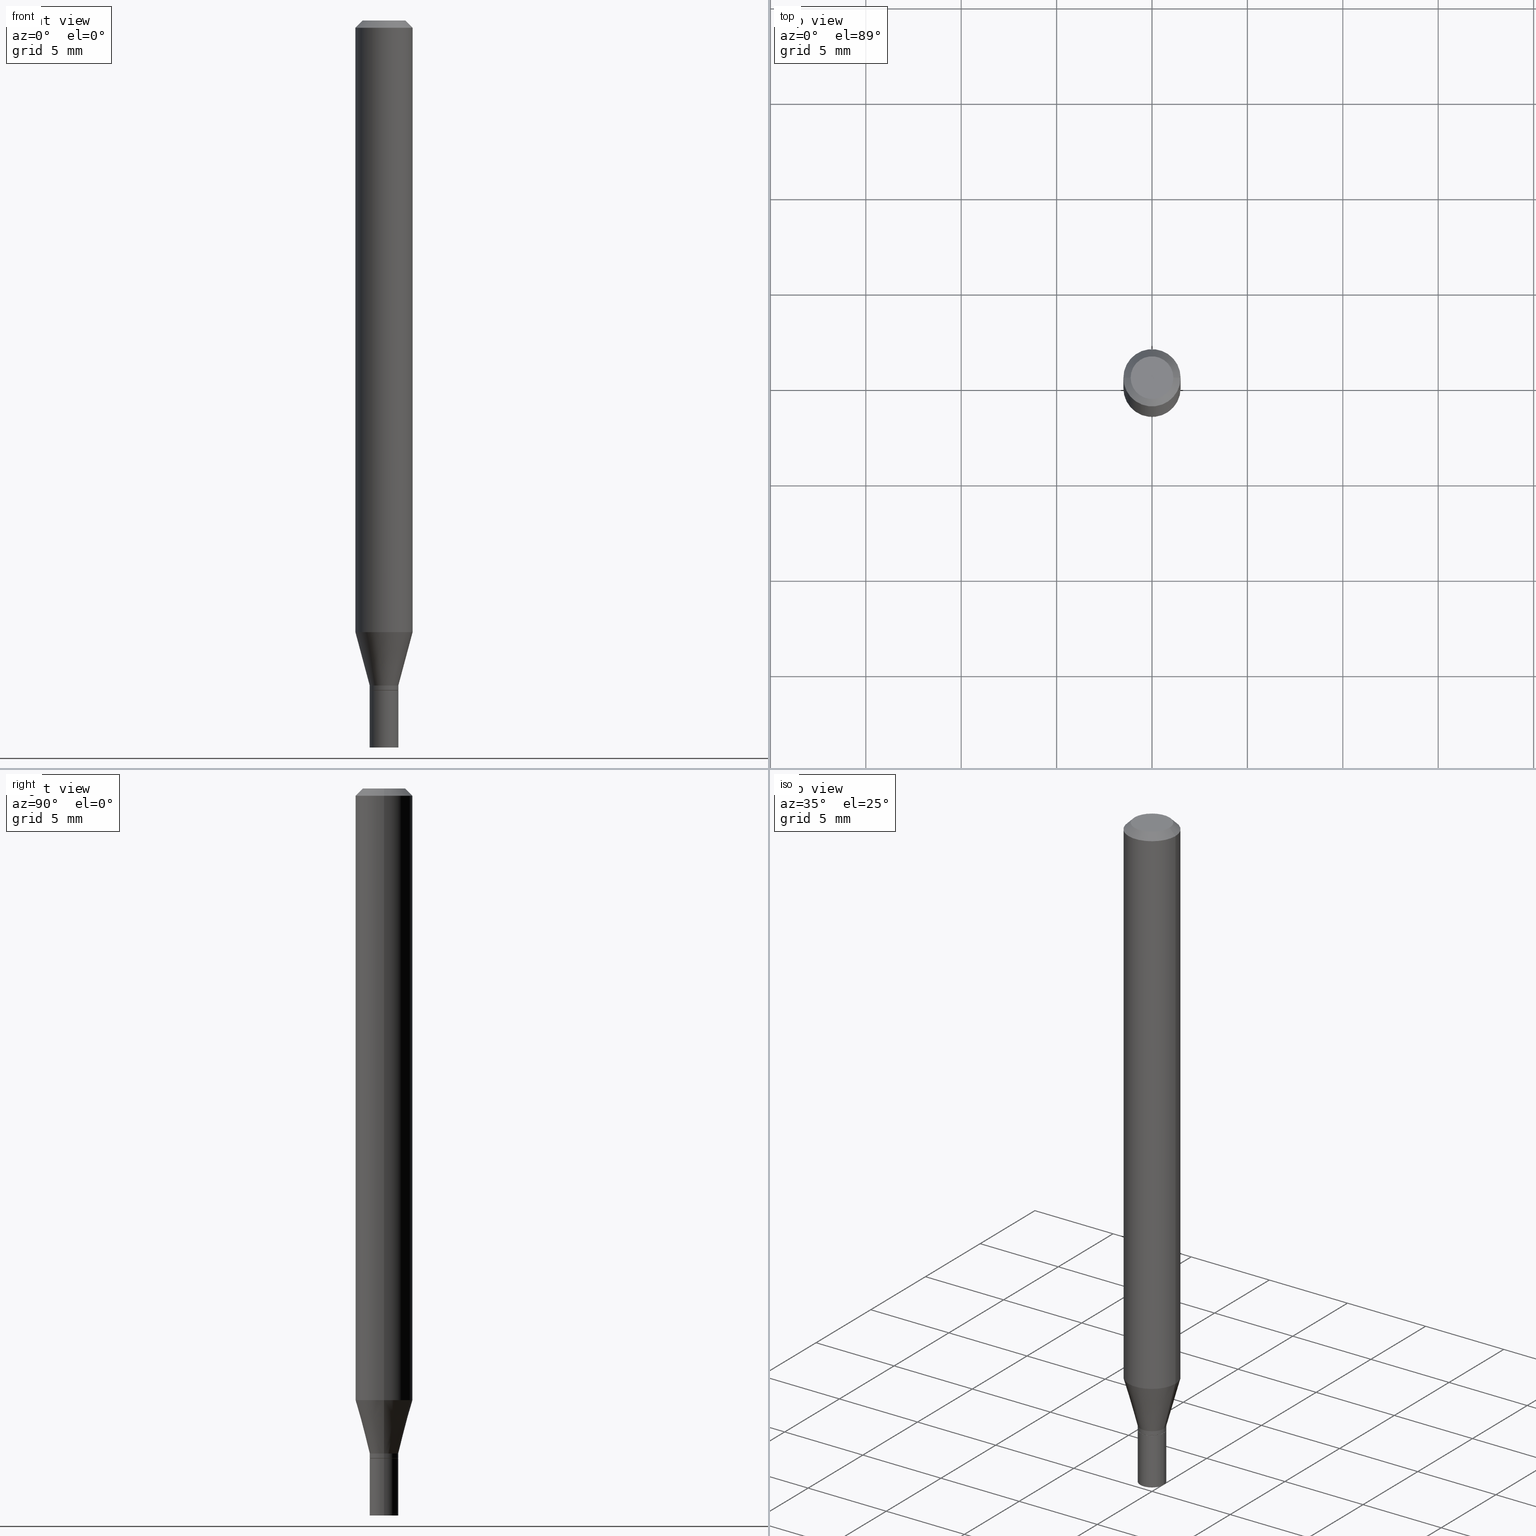
[diagram: canonical four-view strip — front | top / right | iso, engineering-drawing reading convention]
A machine part, canonical four-view strip (front | top / right | iso — engineering-drawing reading convention). The complete STEP part file that produces these views, byte-faithful:
ISO-10303-21;
HEADER;
FILE_DESCRIPTION (( 'STEP AP203' ),
    '1' );
FILE_NAME ('49284.STEP',
    '2024-03-12T20:07:54',
    ( '' ),
    ( '' ),
    'SwSTEP 2.0',
    'SolidWorks 2023',
    '' );
FILE_SCHEMA (( 'CONFIG_CONTROL_DESIGN' ));
ENDSEC;

DATA;
#1 = APPROVAL_DATE_TIME ( #144, #174 ) ;
#2 = EDGE_LOOP ( 'NONE', ( #68, #182, #305, #393 ) ) ;
#3 = CARTESIAN_POINT ( 'NONE',  ( 3.355183202086007133E-29, -4.790312396892795908E-15, -1.372000000000000108 ) ) ;
#4 = PRODUCT_DEFINITION_FORMATION_WITH_SPECIFIED_SOURCE ( 'ANY', '', #204, .NOT_KNOWN. ) ;
#5 = CIRCLE ( 'NONE', #181, 0.02954999999999992008 ) ;
#6 = APPROVAL_PERSON_ORGANIZATION ( #61, #415, #177 ) ;
#7 = CYLINDRICAL_SURFACE ( 'NONE', #77, 0.02954999999999999988 ) ;
#8 = EDGE_CURVE ( 'NONE', #217, #253, #255, .T. ) ;
#9 = CARTESIAN_POINT ( 'NONE',  ( 0.000000000000000000, 0.000000000000000000, 0.000000000000000000 ) ) ;
#10 = CARTESIAN_POINT ( 'NONE',  ( 3.668203209277705088E-31, -5.237222008264718399E-17, -0.01499999999999999944 ) ) ;
#11 = DIRECTION ( 'NONE',  ( 1.000000000000000000, -6.982962677686265922E-15, 4.876176775795935793E-29 ) ) ;
#12 = CARTESIAN_POINT ( 'NONE',  ( 3.668203209277705088E-31, -5.237222008264718399E-17, -0.01499999999999999944 ) ) ;
#13 = DIRECTION ( 'NONE',  ( -2.445468806185136597E-29, 3.491481338843145583E-15, 1.000000000000000000 ) ) ;
#14 = CARTESIAN_POINT ( 'NONE',  ( 3.355183202086007133E-29, -4.790312396892795908E-15, -1.372000000000000108 ) ) ;
#15 = DIRECTION ( 'NONE',  ( -2.445468806185136597E-29, 3.491481338843145583E-15, 1.000000000000000000 ) ) ;
#16 = VECTOR ( 'NONE', #38, 39.37007874015748854 ) ;
#17 = ADVANCED_FACE ( 'NONE', ( #395 ), #167, .T. ) ;
#18 = DIRECTION ( 'NONE',  ( -2.445468806185136597E-29, 3.491481338843145583E-15, 1.000000000000000000 ) ) ;
#19 = DIRECTION ( 'NONE',  ( -2.445468806185136597E-29, 3.491481338843145583E-15, 1.000000000000000000 ) ) ;
#20 = CARTESIAN_POINT ( 'NONE',  ( 3.379393343267239894E-29, -4.824878062147343257E-15, -1.381900000000000128 ) ) ;
#21 = PERSON_AND_ORGANIZATION_ROLE ( 'classification_officer' ) ;
#22 = DIRECTION ( 'NONE',  ( 1.000000000000000000, -6.982962677686281699E-15, 0.000000000000000000 ) ) ;
#23 = AXIS2_PLACEMENT_3D ( 'NONE', #360, #78, #406 ) ;
#24 = ORIENTED_EDGE ( 'NONE', *, *, #179, .T. ) ;
#25 = CYLINDRICAL_SURFACE ( 'NONE', #120, 0.02954999999999999988 ) ;
#26 =( NAMED_UNIT ( * ) PLANE_ANGLE_UNIT ( ) SI_UNIT ( $, .RADIAN. ) );
#27 = EDGE_CURVE ( 'NONE', #217, #141, #251, .T. ) ;
#28 = ORIENTED_EDGE ( 'NONE', *, *, #456, .F. ) ;
#29 = CARTESIAN_POINT ( 'NONE',  ( 0.000000000000000000, 0.000000000000000000, 0.000000000000000000 ) ) ;
#30 = DIRECTION ( 'NONE',  ( -2.445468806185136597E-29, 3.491481338843145583E-15, 1.000000000000000000 ) ) ;
#31 = MANIFOLD_SOLID_BREP ( 'Body-Move/Copy2[1]', #155 ) ;
#32 = ADVANCED_FACE ( 'NONE', ( #75 ), #268, .T. ) ;
#33 = ORIENTED_EDGE ( 'NONE', *, *, #438, .T. ) ;
#34 = ORIENTED_EDGE ( 'NONE', *, *, #179, .F. ) ;
#35 = PRODUCT_DEFINITION ( 'UNKNOWN', '', #4, #215 ) ;
#36 = DIRECTION ( 'NONE',  ( 1.000000000000000000, -6.982962677686266711E-15, 0.000000000000000000 ) ) ;
#37 = CARTESIAN_POINT ( 'NONE',  ( 3.379393343267239894E-29, -4.824878062147343257E-15, -1.381900000000000128 ) ) ;
#38 = DIRECTION ( 'NONE',  ( 0.2588190451025225713, 1.565188264969612304E-15, 0.9659258262890678681 ) ) ;
#39 = AXIS2_PLACEMENT_3D ( 'NONE', #193, #188, #436 ) ;
#40 = DIRECTION ( 'NONE',  ( 1.000000000000000000, -6.982962677686273021E-15, 0.000000000000000000 ) ) ;
#41 = DIRECTION ( 'NONE',  ( -0.2588190451025225713, 5.211531920934557353E-15, 0.9659258262890678681 ) ) ;
#42 = CARTESIAN_POINT ( 'NONE',  ( -0.05905000000000002608, -1.809568633205325453E-15, -0.01499999999999999944 ) ) ;
#43 = DIRECTION ( 'NONE',  ( -0.7071067811865656694, 7.493145998870420424E-15, 0.7071067811865294761 ) ) ;
#44 = DIRECTION ( 'NONE',  ( -2.445468806185136597E-29, 3.491481338843145583E-15, 1.000000000000000000 ) ) ;
#45 = FACE_OUTER_BOUND ( 'NONE', #432, .T. ) ;
#46 = DIRECTION ( 'NONE',  ( -2.445468806185136877E-29, 3.491481338843145188E-15, 1.000000000000000000 ) ) ;
#47 = VERTEX_POINT ( 'NONE', #323 ) ;
#48 = AXIS2_PLACEMENT_3D ( 'NONE', #336, #435, #197 ) ;
#49 = DIRECTION ( 'NONE',  ( -2.445468806185136877E-29, 3.491481338843145188E-15, 1.000000000000000000 ) ) ;
#50 = PLANE ( 'NONE',  #63 ) ;
#51 = CYLINDRICAL_SURFACE ( 'NONE', #380, 0.05905000000000000526 ) ;
#52 = DIRECTION ( 'NONE',  ( 1.000000000000000000, -6.982962677686266711E-15, 0.000000000000000000 ) ) ;
#53 = DIRECTION ( 'NONE',  ( 1.000000000000000000, -6.982962677686278543E-15, 0.000000000000000000 ) ) ;
#54 = ORIENTED_EDGE ( 'NONE', *, *, #391, .T. ) ;
#55 = DIRECTION ( 'NONE',  ( -2.445468806185136597E-29, 3.491481338843145583E-15, 1.000000000000000000 ) ) ;
#56 = AXIS2_PLACEMENT_3D ( 'NONE', #300, #269, #156 ) ;
#57 =( CONVERSION_BASED_UNIT ( 'INCH', #348 ) LENGTH_UNIT ( ) NAMED_UNIT ( #321 ) );
#58 = ORIENTED_EDGE ( 'NONE', *, *, #69, .F. ) ;
#59 = PERSON_AND_ORGANIZATION ( #326, #462 ) ;
#60 = EDGE_CURVE ( 'NONE', #103, #47, #111, .T. ) ;
#61 = PERSON_AND_ORGANIZATION ( #326, #462 ) ;
#62 = EDGE_CURVE ( 'NONE', #103, #170, #5, .T. ) ;
#63 = AXIS2_PLACEMENT_3D ( 'NONE', #116, #264, #82 ) ;
#64 = PERSON_AND_ORGANIZATION ( #326, #462 ) ;
#65 = SECURITY_CLASSIFICATION ( '', '', #92 ) ;
#66 = FACE_OUTER_BOUND ( 'NONE', #180, .T. ) ;
#67 = ORIENTED_EDGE ( 'NONE', *, *, #152, .F. ) ;
#68 = ORIENTED_EDGE ( 'NONE', *, *, #442, .T. ) ;
#69 = EDGE_CURVE ( 'NONE', #137, #278, #99, .T. ) ;
#70 = AXIS2_PLACEMENT_3D ( 'NONE', #443, #149, #366 ) ;
#71 = ORIENTED_EDGE ( 'NONE', *, *, #218, .T. ) ;
#72 = ADVANCED_FACE ( 'NONE', ( #45 ), #7, .T. ) ;
#73 = DIRECTION ( 'NONE',  ( 2.445468806185136597E-29, -3.491481338843145583E-15, -1.000000000000000000 ) ) ;
#74 = CARTESIAN_POINT ( 'NONE',  ( 3.075995059520799729E-16, 0.04404999999999999888, 2.287766971589501637E-17 ) ) ;
#75 = FACE_OUTER_BOUND ( 'NONE', #337, .T. ) ;
#76 = DIRECTION ( 'NONE',  ( 0.7071067811865396902, -7.319954787623229224E-15, -0.7071067811865553443 ) ) ;
#77 = AXIS2_PLACEMENT_3D ( 'NONE', #9, #397, #84 ) ;
#78 = DIRECTION ( 'NONE',  ( -2.445468806185136597E-29, 3.491481338843145583E-15, 1.000000000000000000 ) ) ;
#79 = DIRECTION ( 'NONE',  ( 1.000000000000000000, -6.982962677686280910E-15, 0.000000000000000000 ) ) ;
#80 = PLANE ( 'NONE',  #210 ) ;
#81 = FACE_OUTER_BOUND ( 'NONE', #419, .T. ) ;
#82 = DIRECTION ( 'NONE',  ( 1.000000000000000000, -6.982962677686265922E-15, 4.876176775795935793E-29 ) ) ;
#83 = ORIENTED_EDGE ( 'NONE', *, *, #8, .T. ) ;
#84 = DIRECTION ( 'NONE',  ( 1.000000000000000000, -6.982962677686266711E-15, 4.876176775795935793E-29 ) ) ;
#85 = DIRECTION ( 'NONE',  ( 1.000000000000000000, -6.982962677686278543E-15, 0.000000000000000000 ) ) ;
#86 = LOCAL_TIME ( 16, 7, 54.00000000000000000, #243 ) ;
#87 = LINE ( 'NONE', #166, #202 ) ;
#88 = EDGE_LOOP ( 'NONE', ( #162, #378, #128, #100 ) ) ;
#89 = EDGE_CURVE ( 'NONE', #450, #301, #259, .T. ) ;
#90 = DATE_AND_TIME ( #457, #355 ) ;
#91 = ORIENTED_EDGE ( 'NONE', *, *, #184, .F. ) ;
#92 = SECURITY_CLASSIFICATION_LEVEL ( 'unclassified' ) ;
#93 = VERTEX_POINT ( 'NONE', #106 ) ;
#94 = AXIS2_PLACEMENT_3D ( 'NONE', #454, #30, #458 ) ;
#95 = LOCAL_TIME ( 16, 7, 54.00000000000000000, #205 ) ;
#96 = APPROVAL_DATE_TIME ( #90, #213 ) ;
#97 = CARTESIAN_POINT ( 'NONE',  ( 3.379393343267239894E-29, -4.824878062147343257E-15, -1.381900000000000128 ) ) ;
#98 = ORIENTED_EDGE ( 'NONE', *, *, #365, .T. ) ;
#99 = CIRCLE ( 'NONE', #147, 0.04404999999999999888 ) ;
#100 = ORIENTED_EDGE ( 'NONE', *, *, #211, .F. ) ;
#101 = ORIENTED_EDGE ( 'NONE', *, *, #307, .F. ) ;
#102 = ADVANCED_FACE ( 'NONE', ( #234 ), #387, .T. ) ;
#103 = VERTEX_POINT ( 'NONE', #158 ) ;
#104 = CARTESIAN_POINT ( 'NONE',  ( 0.05905000000000000526, -4.123439461173741313E-16, 2.879382386107500571E-30 ) ) ;
#105 = AXIS2_PLACEMENT_3D ( 'NONE', #14, #262, #373 ) ;
#106 = CARTESIAN_POINT ( 'NONE',  ( 0.02954999999999999988, -5.031224609272972078E-15, -1.381900000000000128 ) ) ;
#107 = DIRECTION ( 'NONE',  ( 1.000000000000000000, -6.982962677686281699E-15, 0.000000000000000000 ) ) ;
#108 = PLANE ( 'NONE',  #266 ) ;
#109 = CARTESIAN_POINT ( 'NONE',  ( -0.04404999999999999888, 3.337856159934041534E-16, 3.533548453838689148E-16 ) ) ;
#110 = DIRECTION ( 'NONE',  ( -1.000000000000000000, 6.982962677686265922E-15, -4.876176775795935793E-29 ) ) ;
#111 = LINE ( 'NONE', #289, #244 ) ;
#112 = DIRECTION ( 'NONE',  ( 1.000000000000000000, -6.982962677686261977E-15, 0.000000000000000000 ) ) ;
#113 = CARTESIAN_POINT ( 'NONE',  ( -0.02954999999999999988, -4.821084656788921754E-15, -1.381900000000000128 ) ) ;
#114 = ORIENTED_EDGE ( 'NONE', *, *, #27, .F. ) ;
#115 = CARTESIAN_POINT ( 'NONE',  ( 0.02954999999999991661, -4.996658944018425519E-15, -1.372000000000000108 ) ) ;
#116 = CARTESIAN_POINT ( 'NONE',  ( 3.576687321579069994E-29, -5.368277968210015545E-15, -1.500000000000000222 ) ) ;
#117 = AXIS2_PLACEMENT_3D ( 'NONE', #299, #403, #79 ) ;
#118 = EDGE_CURVE ( 'NONE', #253, #126, #175, .T. ) ;
#119 = CARTESIAN_POINT ( 'NONE',  ( 0.04404999999999999888, -3.798447818264455642E-16, 3.533548453838735986E-16 ) ) ;
#120 = AXIS2_PLACEMENT_3D ( 'NONE', #29, #171, #161 ) ;
#121 = ORIENTED_EDGE ( 'NONE', *, *, #118, .F. ) ;
#122 = CC_DESIGN_APPROVAL ( #415, ( #35 ) ) ;
#123 = PRODUCT_DEFINITION_SHAPE ( 'NONE', 'NONE',  #35 ) ;
#124 = DIRECTION ( 'NONE',  ( 0.7071067811865656694, -2.468850131082446387E-15, 0.7071067811865294761 ) ) ;
#125 = CC_DESIGN_PERSON_AND_ORGANIZATION_ASSIGNMENT ( #240, #21, ( #65 ) ) ;
#126 = VERTEX_POINT ( 'NONE', #42 ) ;
#127 = PERSON_AND_ORGANIZATION_ROLE ( 'creator' ) ;
#128 = ORIENTED_EDGE ( 'NONE', *, *, #442, .F. ) ;
#129 = ADVANCED_FACE ( 'NONE', ( #153 ), #131, .T. ) ;
#130 = DATE_TIME_ROLE ( 'classification_date' ) ;
#131 = CONICAL_SURFACE ( 'NONE', #227, 0.02954999999999991661, 0.2617993877991512952 ) ;
#132 = CARTESIAN_POINT ( 'NONE',  ( -0.05905000000000000526, 4.195754854663391971E-16, -2.904631170795522242E-30 ) ) ;
#133 = PERSON_AND_ORGANIZATION ( #326, #462 ) ;
#134 = DIRECTION ( 'NONE',  ( 1.000000000000000000, -6.982962677686278543E-15, 0.000000000000000000 ) ) ;
#135 = DATE_TIME_ROLE ( 'creation_date' ) ;
#136 = ORIENTED_EDGE ( 'NONE', *, *, #285, .T. ) ;
#137 = VERTEX_POINT ( 'NONE', #109 ) ;
#138 = ADVANCED_FACE ( 'NONE', ( #261 ), #405, .T. ) ;
#139 = EDGE_LOOP ( 'NONE', ( #28, #221 ) ) ;
#140 = AXIS2_PLACEMENT_3D ( 'NONE', #370, #13, #324 ) ;
#141 = VERTEX_POINT ( 'NONE', #201 ) ;
#142 = EDGE_CURVE ( 'NONE', #176, #47, #315, .T. ) ;
#143 = ORIENTED_EDGE ( 'NONE', *, *, #407, .F. ) ;
#144 = DATE_AND_TIME ( #388, #245 ) ;
#145 = CARTESIAN_POINT ( 'NONE',  ( 3.355183202086007133E-29, -4.790312396892795908E-15, -1.372000000000000108 ) ) ;
#146 = ADVANCED_FACE ( 'NONE', ( #203 ), #25, .T. ) ;
#147 = AXIS2_PLACEMENT_3D ( 'NONE', #258, #225, #186 ) ;
#148 = VECTOR ( 'NONE', #46, 39.37007874015748143 ) ;
#149 = DIRECTION ( 'NONE',  ( -2.445468806185136597E-29, 3.491481338843145583E-15, 1.000000000000000000 ) ) ;
#150 = DIRECTION ( 'NONE',  ( -2.445468806185136877E-29, 3.491481338843145188E-15, 1.000000000000000000 ) ) ;
#151 = CARTESIAN_POINT ( 'NONE',  ( 0.000000000000000000, 0.000000000000000000, 0.000000000000000000 ) ) ;
#152 = EDGE_CURVE ( 'NONE', #141, #126, #459, .T. ) ;
#153 = FACE_OUTER_BOUND ( 'NONE', #353, .T. ) ;
#154 = DIRECTION ( 'NONE',  ( -2.445468806185136597E-29, 3.491481338843145583E-15, 1.000000000000000000 ) ) ;
#155 = CLOSED_SHELL ( 'NONE', ( #146, #427, #72, #402 ) ) ;
#156 = DIRECTION ( 'NONE',  ( 1.000000000000000000, -6.982962677686261977E-15, 0.000000000000000000 ) ) ;
#157 = CC_DESIGN_DATE_AND_TIME_ASSIGNMENT ( #270, #135, ( #35 ) ) ;
#158 = CARTESIAN_POINT ( 'NONE',  ( -0.02954999999999992008, -4.613166943060813184E-15, -1.381400000000000183 ) ) ;
#159 = CARTESIAN_POINT ( 'NONE',  ( -0.05905000000000001914, 3.599717260347269535E-16, -0.01499999999999999944 ) ) ;
#160 = ORIENTED_EDGE ( 'NONE', *, *, #285, .F. ) ;
#161 = DIRECTION ( 'NONE',  ( 1.000000000000000000, -6.982962677686266711E-15, 4.876176775795935793E-29 ) ) ;
#162 = ORIENTED_EDGE ( 'NONE', *, *, #456, .T. ) ;
#163 = DIRECTION ( 'NONE',  ( 1.000000000000000000, -6.982962677686266711E-15, 4.876176775795935232E-29 ) ) ;
#164 = PRODUCT_RELATED_PRODUCT_CATEGORY ( 'detail', '', ( #204 ) ) ;
#165 = CALENDAR_DATE ( 2024, 12, 3 ) ;
#166 = CARTESIAN_POINT ( 'NONE',  ( -0.02954999999999991661, -4.580347018475686551E-15, -1.372000000000000108 ) ) ;
#167 = CONICAL_SURFACE ( 'NONE', #194, 0.02904999999999999596, 0.7853981633974739252 ) ;
#168 = ORIENTED_EDGE ( 'NONE', *, *, #60, .F. ) ;
#169 =( NAMED_UNIT ( * ) SI_UNIT ( $, .STERADIAN. ) SOLID_ANGLE_UNIT ( ) );
#170 = VERTEX_POINT ( 'NONE', #446 ) ;
#171 = DIRECTION ( 'NONE',  ( -2.445468806185136597E-29, 3.491481338843145583E-15, 1.000000000000000000 ) ) ;
#172 = APPLICATION_PROTOCOL_DEFINITION ( 'international standard', 'config_control_design', 1994, #335 ) ;
#173 = ORIENTED_EDGE ( 'NONE', *, *, #438, .F. ) ;
#174 = APPROVAL ( #248, 'UNSPECIFIED' ) ;
#175 = CIRCLE ( 'NONE', #421, 0.05905000000000001914 ) ;
#176 = VERTEX_POINT ( 'NONE', #115 ) ;
#177 = APPROVAL_ROLE ( '' ) ;
#178 = VERTEX_POINT ( 'NONE', #265 ) ;
#179 = EDGE_CURVE ( 'NONE', #93, #310, #394, .T. ) ;
#180 = EDGE_LOOP ( 'NONE', ( #168, #311, #200, #241 ) ) ;
#181 = AXIS2_PLACEMENT_3D ( 'NONE', #327, #434, #330 ) ;
#182 = ORIENTED_EDGE ( 'NONE', *, *, #60, .T. ) ;
#183 = CIRCLE ( 'NONE', #236, 0.02904999999999999596 ) ;
#184 = EDGE_CURVE ( 'NONE', #141, #217, #359, .T. ) ;
#185 = DIRECTION ( 'NONE',  ( -1.000000000000000000, 6.982962677686266711E-15, 0.000000000000000000 ) ) ;
#186 = DIRECTION ( 'NONE',  ( 1.000000000000000000, -6.982962677686265922E-15, 4.819687581474398999E-29 ) ) ;
#187 = AXIS2_PLACEMENT_3D ( 'NONE', #3, #18, #107 ) ;
#188 = DIRECTION ( 'NONE',  ( -2.445468806185136597E-29, 3.491481338843145583E-15, 1.000000000000000000 ) ) ;
#189 = ADVANCED_FACE ( 'NONE', ( #228 ), #220, .T. ) ;
#190 = DIRECTION ( 'NONE',  ( -2.438088387897960049E-29, 3.491481338843145188E-15, 1.000000000000000000 ) ) ;
#191 = CYLINDRICAL_SURFACE ( 'NONE', #140, 0.05905000000000000526 ) ;
#192 = CARTESIAN_POINT ( 'NONE',  ( -0.02954999999999999988, -4.821084656788921754E-15, -1.500000000000000222 ) ) ;
#193 = CARTESIAN_POINT ( 'NONE',  ( 3.668203209277704895E-29, -5.237222008264718177E-15, -1.500000000000000222 ) ) ;
#194 = AXIS2_PLACEMENT_3D ( 'NONE', #224, #358, #134 ) ;
#195 = AXIS2_PLACEMENT_3D ( 'NONE', #20, #154, #85 ) ;
#196 = ADVANCED_FACE ( 'NONE', ( #81 ), #191, .T. ) ;
#197 = DIRECTION ( 'NONE',  ( -1.000000000000000000, 6.982962677686266711E-15, 0.000000000000000000 ) ) ;
#198 = ORIENTED_EDGE ( 'NONE', *, *, #420, .T. ) ;
#199 = CARTESIAN_POINT ( 'NONE',  ( 0.05905000000000001914, -4.574846268510562433E-16, -0.01499999999999999944 ) ) ;
#200 = ORIENTED_EDGE ( 'NONE', *, *, #383, .T. ) ;
#201 = CARTESIAN_POINT ( 'NONE',  ( -0.05904999999999999832, -3.986340531794342137E-15, -1.261904501176718707 ) ) ;
#202 = VECTOR ( 'NONE', #41, 39.37007874015748854 ) ;
#203 = FACE_OUTER_BOUND ( 'NONE', #417, .T. ) ;
#204 = PRODUCT ( '49284', '49284', '', ( #461 ) ) ;
#205 = COORDINATED_UNIVERSAL_TIME_OFFSET ( 5, 0, .BEHIND. ) ;
#206 = ADVANCED_FACE ( 'NONE', ( #368 ), #447, .F. ) ;
#207 = APPROVAL_ROLE ( '' ) ;
#208 = CC_DESIGN_PERSON_AND_ORGANIZATION_ASSIGNMENT ( #133, #418, ( #35 ) ) ;
#209 = VECTOR ( 'NONE', #76, 39.37007874015748143 ) ;
#210 = AXIS2_PLACEMENT_3D ( 'NONE', #367, #190, #11 ) ;
#211 = EDGE_CURVE ( 'NONE', #429, #170, #237, .T. ) ;
#212 = CIRCLE ( 'NONE', #105, 0.02954999999999991661 ) ;
#213 = APPROVAL ( #426, 'UNSPECIFIED' ) ;
#214 = ORIENTED_EDGE ( 'NONE', *, *, #365, .F. ) ;
#215 = DESIGN_CONTEXT ( 'detailed design', #335, 'design' ) ;
#216 = ORIENTED_EDGE ( 'NONE', *, *, #89, .T. ) ;
#217 = VERTEX_POINT ( 'NONE', #412 ) ;
#218 = EDGE_CURVE ( 'NONE', #47, #141, #87, .T. ) ;
#219 = ORIENTED_EDGE ( 'NONE', *, *, #357, .F. ) ;
#220 = CONICAL_SURFACE ( 'NONE', #256, 0.02904999999999999596, 0.7853981633974739252 ) ;
#221 = ORIENTED_EDGE ( 'NONE', *, *, #318, .F. ) ;
#222 = APPROVAL_PERSON_ORGANIZATION ( #59, #174, #207 ) ;
#223 = COORDINATED_UNIVERSAL_TIME_OFFSET ( 5, 0, .BEHIND. ) ;
#224 = CARTESIAN_POINT ( 'NONE',  ( 3.379393343267239894E-29, -4.824878062147343257E-15, -1.381900000000000128 ) ) ;
#225 = DIRECTION ( 'NONE',  ( -2.445468806185136597E-29, 3.491481338843145583E-15, 1.000000000000000000 ) ) ;
#226 = CARTESIAN_POINT ( 'NONE',  ( 3.379393343267239894E-29, -4.824878062147343257E-15, -1.381900000000000128 ) ) ;
#227 = AXIS2_PLACEMENT_3D ( 'NONE', #145, #440, #287 ) ;
#228 = FACE_OUTER_BOUND ( 'NONE', #88, .T. ) ;
#229 = CARTESIAN_POINT ( 'NONE',  ( -0.02904999999999999596, -4.618465397409034798E-15, -1.381900000000000128 ) ) ;
#230 = CARTESIAN_POINT ( 'NONE',  ( 0.02904999999999999596, -5.027733127934129860E-15, -1.381900000000000128 ) ) ;
#231 = ADVANCED_FACE ( 'NONE', ( #400 ), #80, .F. ) ;
#232 = LINE ( 'NONE', #159, #433 ) ;
#233 = EDGE_LOOP ( 'NONE', ( #356, #282 ) ) ;
#234 = FACE_OUTER_BOUND ( 'NONE', #455, .T. ) ;
#235 =( GEOMETRIC_REPRESENTATION_CONTEXT ( 3 ) GLOBAL_UNCERTAINTY_ASSIGNED_CONTEXT ( ( #389 ) ) GLOBAL_UNIT_ASSIGNED_CONTEXT ( ( #57, #26, #169 ) ) REPRESENTATION_CONTEXT ( 'NONE', 'WORKASPACE' ) );
#236 = AXIS2_PLACEMENT_3D ( 'NONE', #97, #313, #53 ) ;
#237 = LINE ( 'NONE', #362, #414 ) ;
#238 = CC_DESIGN_APPROVAL ( #213, ( #4 ) ) ;
#239 = CARTESIAN_POINT ( 'NONE',  ( 2.063465471256629645E-16, 0.02954999999999517735, -1.381900000000000128 ) ) ;
#240 = PERSON_AND_ORGANIZATION ( #326, #462 ) ;
#241 = ORIENTED_EDGE ( 'NONE', *, *, #411, .F. ) ;
#242 = EDGE_CURVE ( 'NONE', #278, #137, #466, .T. ) ;
#243 = COORDINATED_UNIVERSAL_TIME_OFFSET ( 5, 0, .BEHIND. ) ;
#244 = VECTOR ( 'NONE', #150, 39.37007874015748143 ) ;
#245 = LOCAL_TIME ( 16, 7, 54.00000000000000000, #223 ) ;
#246 = ORIENTED_EDGE ( 'NONE', *, *, #62, .F. ) ;
#247 = CC_DESIGN_PERSON_AND_ORGANIZATION_ASSIGNMENT ( #249, #304, ( #204 ) ) ;
#248 = APPROVAL_STATUS ( 'not_yet_approved' ) ;
#249 = PERSON_AND_ORGANIZATION ( #326, #462 ) ;
#250 = EDGE_LOOP ( 'NONE', ( #160, #376 ) ) ;
#251 = CIRCLE ( 'NONE', #345, 0.05904999999999999832 ) ;
#252 = CC_DESIGN_APPROVAL ( #174, ( #65 ) ) ;
#253 = VERTEX_POINT ( 'NONE', #296 ) ;
#254 = ORIENTED_EDGE ( 'NONE', *, *, #420, .F. ) ;
#255 = LINE ( 'NONE', #104, #354 ) ;
#256 = AXIS2_PLACEMENT_3D ( 'NONE', #37, #298, #364 ) ;
#257 = DIRECTION ( 'NONE',  ( -2.445468806185136877E-29, 3.491481338843145188E-15, 1.000000000000000000 ) ) ;
#258 = CARTESIAN_POINT ( 'NONE',  ( -8.641182519006289553E-45, 1.233731848647591164E-30, 3.533548453838711334E-16 ) ) ;
#259 = CIRCLE ( 'NONE', #39, 0.02954999999999999988 ) ;
#260 = CARTESIAN_POINT ( 'NONE',  ( 0.02954999999999999988, -2.063465471256291914E-16, 1.440910237247699070E-30 ) ) ;
#261 = FACE_OUTER_BOUND ( 'NONE', #2, .T. ) ;
#262 = DIRECTION ( 'NONE',  ( -2.445468806185136597E-29, 3.491481338843145583E-15, 1.000000000000000000 ) ) ;
#263 = ORIENTED_EDGE ( 'NONE', *, *, #152, .T. ) ;
#264 = DIRECTION ( 'NONE',  ( -2.438088387897960049E-29, 3.491481338843145188E-15, 1.000000000000000000 ) ) ;
#265 = CARTESIAN_POINT ( 'NONE',  ( -0.02904999999999999596, -4.615816170234923596E-15, -1.381900000000000128 ) ) ;
#266 = AXIS2_PLACEMENT_3D ( 'NONE', #239, #441, #110 ) ;
#267 = LINE ( 'NONE', #331, #309 ) ;
#268 = CONICAL_SURFACE ( 'NONE', #371, 0.05905000000000001914, 0.7853981633974372878 ) ;
#269 = DIRECTION ( 'NONE',  ( -2.445468806185136597E-29, 3.491481338843145583E-15, 1.000000000000000000 ) ) ;
#270 = DATE_AND_TIME ( #464, #452 ) ;
#271 = PERSON_AND_ORGANIZATION ( #326, #462 ) ;
#272 = LINE ( 'NONE', #381, #16 ) ;
#273 = CC_DESIGN_PERSON_AND_ORGANIZATION_ASSIGNMENT ( #64, #127, ( #4 ) ) ;
#274 =( LENGTH_UNIT ( ) NAMED_UNIT ( * ) SI_UNIT ( $, .METRE. ) );
#275 = CIRCLE ( 'NONE', #70, 0.02954999999999999988 ) ;
#276 = ADVANCED_FACE ( 'NONE', ( #329 ), #51, .T. ) ;
#277 = CYLINDRICAL_SURFACE ( 'NONE', #94, 0.02954999999999992008 ) ;
#278 = VERTEX_POINT ( 'NONE', #119 ) ;
#279 = PERSON_AND_ORGANIZATION ( #326, #462 ) ;
#280 = ORIENTED_EDGE ( 'NONE', *, *, #8, .F. ) ;
#281 = SHAPE_DEFINITION_REPRESENTATION ( #123, #431 ) ;
#282 = ORIENTED_EDGE ( 'NONE', *, *, #242, .T. ) ;
#283 = AXIS2_PLACEMENT_3D ( 'NONE', #74, #341, #404 ) ;
#284 = ORIENTED_EDGE ( 'NONE', *, *, #357, .T. ) ;
#285 = EDGE_CURVE ( 'NONE', #301, #450, #302, .T. ) ;
#286 = VECTOR ( 'NONE', #288, 39.37007874015748143 ) ;
#287 = DIRECTION ( 'NONE',  ( 1.000000000000000000, -6.982962677686281699E-15, 0.000000000000000000 ) ) ;
#288 = DIRECTION ( 'NONE',  ( -2.445468806185136877E-29, 3.491481338843145188E-15, 1.000000000000000000 ) ) ;
#289 = CARTESIAN_POINT ( 'NONE',  ( -0.02954999999999992008, 2.099653784171090371E-16, -1.453545319170320697E-30 ) ) ;
#290 = DIRECTION ( 'NONE',  ( -2.445468806185136597E-29, 3.491481338843145583E-15, 1.000000000000000000 ) ) ;
#291 = CARTESIAN_POINT ( 'NONE',  ( -8.641182519006289553E-45, 1.233731848647591164E-30, 3.533548453838711334E-16 ) ) ;
#292 = LINE ( 'NONE', #260, #148 ) ;
#293 = CARTESIAN_POINT ( 'NONE',  ( 0.02954999999999999988, -5.443568555390347787E-15, -1.500000000000000222 ) ) ;
#294 = DIRECTION ( 'NONE',  ( -2.445468806185136597E-29, 3.491481338843145583E-15, 1.000000000000000000 ) ) ;
#295 = FACE_OUTER_BOUND ( 'NONE', #428, .T. ) ;
#296 = CARTESIAN_POINT ( 'NONE',  ( 0.05905000000000001914, -4.647161662000214077E-16, -0.01499999999999999944 ) ) ;
#297 = CARTESIAN_POINT ( 'NONE',  ( 0.000000000000000000, 0.000000000000000000, 0.000000000000000000 ) ) ;
#298 = DIRECTION ( 'NONE',  ( -2.445468806185136597E-29, 3.491481338843145583E-15, 1.000000000000000000 ) ) ;
#299 = CARTESIAN_POINT ( 'NONE',  ( 3.378170608864148213E-29, -4.823132321477921753E-15, -1.381400000000000183 ) ) ;
#300 = CARTESIAN_POINT ( 'NONE',  ( 3.668203209277704895E-29, -5.237222008264718177E-15, -1.500000000000000222 ) ) ;
#301 = VERTEX_POINT ( 'NONE', #293 ) ;
#302 = CIRCLE ( 'NONE', #56, 0.02954999999999999988 ) ;
#303 = EDGE_LOOP ( 'NONE', ( #346, #263, #121, #280 ) ) ;
#304 = PERSON_AND_ORGANIZATION_ROLE ( 'design_owner' ) ;
#305 = ORIENTED_EDGE ( 'NONE', *, *, #142, .F. ) ;
#306 = CALENDAR_DATE ( 2024, 12, 3 ) ;
#307 = EDGE_CURVE ( 'NONE', #137, #126, #232, .T. ) ;
#308 = APPLICATION_PROTOCOL_DEFINITION ( 'international standard', 'config_control_design', 1994, #398 ) ;
#309 = VECTOR ( 'NONE', #338, 39.37007874015748143 ) ;
#310 = VERTEX_POINT ( 'NONE', #113 ) ;
#311 = ORIENTED_EDGE ( 'NONE', *, *, #62, .T. ) ;
#312 = APPROVAL_DATE_TIME ( #416, #415 ) ;
#313 = DIRECTION ( 'NONE',  ( -2.445468806185136597E-29, 3.491481338843145583E-15, 1.000000000000000000 ) ) ;
#314 = EDGE_LOOP ( 'NONE', ( #24, #98 ) ) ;
#315 = CIRCLE ( 'NONE', #322, 0.02954999999999991661 ) ;
#316 = ORIENTED_EDGE ( 'NONE', *, *, #242, .F. ) ;
#317 = ADVANCED_FACE ( 'NONE', ( #66 ), #277, .T. ) ;
#318 = EDGE_CURVE ( 'NONE', #178, #429, #183, .T. ) ;
#319 = CARTESIAN_POINT ( 'NONE',  ( 3.085948094012280841E-29, -4.405916017260681630E-15, -1.261904501176718707 ) ) ;
#320 = CIRCLE ( 'NONE', #117, 0.02954999999999992008 ) ;
#321 = DIMENSIONAL_EXPONENTS ( 1.000000000000000000, 0.000000000000000000, 0.000000000000000000, 0.000000000000000000, 0.000000000000000000, 0.000000000000000000, 0.000000000000000000 ) ;
#322 = AXIS2_PLACEMENT_3D ( 'NONE', #342, #55, #22 ) ;
#323 = CARTESIAN_POINT ( 'NONE',  ( -0.02954999999999991661, -4.283343775135014344E-15, -1.372000000000000108 ) ) ;
#324 = DIRECTION ( 'NONE',  ( 1.000000000000000000, -6.982962677686267499E-15, 4.876176775795936353E-29 ) ) ;
#325 = CC_DESIGN_DATE_AND_TIME_ASSIGNMENT ( #377, #130, ( #65 ) ) ;
#326 = PERSON ( 'UNSPECIFIED', 'UNSPECIFIED', 'UNSPECIFIED', ('UNSPECIFIED'), ('UNSPECIFIED'), ('UNSPECIFIED') ) ;
#327 = CARTESIAN_POINT ( 'NONE',  ( 3.378170608864148213E-29, -4.823132321477921753E-15, -1.381400000000000183 ) ) ;
#328 = CARTESIAN_POINT ( 'NONE',  ( 0.02954999999999992008, -2.063465471256286244E-16, 1.440910237247695041E-30 ) ) ;
#329 = FACE_OUTER_BOUND ( 'NONE', #303, .T. ) ;
#330 = DIRECTION ( 'NONE',  ( 1.000000000000000000, -6.982962677686280910E-15, 0.000000000000000000 ) ) ;
#331 = CARTESIAN_POINT ( 'NONE',  ( -0.02954999999999999988, 2.099653784171096041E-16, -1.453545319170324550E-30 ) ) ;
#332 = DIRECTION ( 'NONE',  ( 1.000000000000000000, -6.982962677686265922E-15, 4.819687581474398999E-29 ) ) ;
#333 = AXIS2_PLACEMENT_3D ( 'NONE', #349, #347, #423 ) ;
#334 = MANIFOLD_SOLID_BREP ( 'Body-Move/Copy2[2]', #460 ) ;
#335 = APPLICATION_CONTEXT ( 'configuration controlled 3d designs of mechanical parts and assemblies' ) ;
#336 = CARTESIAN_POINT ( 'NONE',  ( 3.668203209277705088E-31, -5.237222008264718399E-17, -0.01499999999999999944 ) ) ;
#337 = EDGE_LOOP ( 'NONE', ( #254, #58, #392, #54 ) ) ;
#338 = DIRECTION ( 'NONE',  ( -2.445468806185136877E-29, 3.491481338843145188E-15, 1.000000000000000000 ) ) ;
#339 = ORIENTED_EDGE ( 'NONE', *, *, #411, .T. ) ;
#340 = PERSON_AND_ORGANIZATION_ROLE ( 'design_supplier' ) ;
#341 = DIRECTION ( 'NONE',  ( 2.438088387897960049E-29, -3.491481338843145188E-15, -1.000000000000000000 ) ) ;
#342 = CARTESIAN_POINT ( 'NONE',  ( 3.355183202086007133E-29, -4.790312396892795908E-15, -1.372000000000000108 ) ) ;
#343 = CC_DESIGN_PERSON_AND_ORGANIZATION_ASSIGNMENT ( #271, #340, ( #4 ) ) ;
#344 = APPROVAL_ROLE ( '' ) ;
#345 = AXIS2_PLACEMENT_3D ( 'NONE', #319, #294, #40 ) ;
#346 = ORIENTED_EDGE ( 'NONE', *, *, #27, .T. ) ;
#347 = DIRECTION ( 'NONE',  ( 0.000000000000000000, 0.000000000000000000, 1.000000000000000000 ) ) ;
#348 = LENGTH_MEASURE_WITH_UNIT ( LENGTH_MEASURE( 0.02539999999999999897 ), #274 );
#349 = CARTESIAN_POINT ( 'NONE',  ( 0.000000000000000000, 0.000000000000000000, 0.000000000000000000 ) ) ;
#350 = AXIS2_PLACEMENT_3D ( 'NONE', #226, #290, #112 ) ;
#351 = VECTOR ( 'NONE', #43, 39.37007874015748143 ) ;
#352 = ORIENTED_EDGE ( 'NONE', *, *, #142, .T. ) ;
#353 = EDGE_LOOP ( 'NONE', ( #352, #71, #114, #219 ) ) ;
#354 = VECTOR ( 'NONE', #257, 39.37007874015748143 ) ;
#355 = LOCAL_TIME ( 16, 7, 54.00000000000000000, #385 ) ;
#356 = ORIENTED_EDGE ( 'NONE', *, *, #69, .T. ) ;
#357 = EDGE_CURVE ( 'NONE', #176, #217, #272, .T. ) ;
#358 = DIRECTION ( 'NONE',  ( -2.445468806185136597E-29, 3.491481338843145583E-15, 1.000000000000000000 ) ) ;
#359 = CIRCLE ( 'NONE', #23, 0.05904999999999999832 ) ;
#360 = CARTESIAN_POINT ( 'NONE',  ( 3.085948094012280841E-29, -4.405916017260681630E-15, -1.261904501176718707 ) ) ;
#361 = FACE_OUTER_BOUND ( 'NONE', #250, .T. ) ;
#362 = CARTESIAN_POINT ( 'NONE',  ( 0.02904999999999999596, -5.027733127934129860E-15, -1.381900000000000128 ) ) ;
#363 = DIRECTION ( 'NONE',  ( -2.445468806185136597E-29, 3.491481338843145583E-15, 1.000000000000000000 ) ) ;
#364 = DIRECTION ( 'NONE',  ( 1.000000000000000000, -6.982962677686278543E-15, 0.000000000000000000 ) ) ;
#365 = EDGE_CURVE ( 'NONE', #310, #93, #275, .T. ) ;
#366 = DIRECTION ( 'NONE',  ( 1.000000000000000000, -6.982962677686261977E-15, 0.000000000000000000 ) ) ;
#367 = CARTESIAN_POINT ( 'NONE',  ( 3.379393343267239894E-29, -4.824878062147343257E-15, -1.381900000000000128 ) ) ;
#368 = FACE_OUTER_BOUND ( 'NONE', #233, .T. ) ;
#369 = CIRCLE ( 'NONE', #422, 0.05905000000000001914 ) ;
#370 = CARTESIAN_POINT ( 'NONE',  ( 0.000000000000000000, 0.000000000000000000, 0.000000000000000000 ) ) ;
#371 = AXIS2_PLACEMENT_3D ( 'NONE', #396, #73, #185 ) ;
#372 = APPROVAL_PERSON_ORGANIZATION ( #279, #213, #344 ) ;
#373 = DIRECTION ( 'NONE',  ( 1.000000000000000000, -6.982962677686281699E-15, 0.000000000000000000 ) ) ;
#374 = ADVANCED_FACE ( 'NONE', ( #295 ), #413, .T. ) ;
#375 = LINE ( 'NONE', #328, #286 ) ;
#376 = ORIENTED_EDGE ( 'NONE', *, *, #89, .F. ) ;
#377 = DATE_AND_TIME ( #165, #86 ) ;
#378 = ORIENTED_EDGE ( 'NONE', *, *, #448, .T. ) ;
#379 = APPROVAL_STATUS ( 'not_yet_approved' ) ;
#380 = AXIS2_PLACEMENT_3D ( 'NONE', #151, #15, #409 ) ;
#381 = CARTESIAN_POINT ( 'NONE',  ( 0.02954999999999991661, -4.996658944018425519E-15, -1.372000000000000108 ) ) ;
#382 = ORIENTED_EDGE ( 'NONE', *, *, #318, .T. ) ;
#383 = EDGE_CURVE ( 'NONE', #170, #176, #375, .T. ) ;
#384 = EDGE_LOOP ( 'NONE', ( #425, #382, #430, #246 ) ) ;
#385 = COORDINATED_UNIVERSAL_TIME_OFFSET ( 5, 0, .BEHIND. ) ;
#386 = CC_DESIGN_SECURITY_CLASSIFICATION ( #65, ( #4 ) ) ;
#387 = CONICAL_SURFACE ( 'NONE', #187, 0.02954999999999991661, 0.2617993877991512952 ) ;
#388 = CALENDAR_DATE ( 2024, 12, 3 ) ;
#389 = UNCERTAINTY_MEASURE_WITH_UNIT (LENGTH_MEASURE( 1.000000000000000082E-05 ), #57, 'distance_accuracy_value', 'NONE');
#390 = ORIENTED_EDGE ( 'NONE', *, *, #184, .T. ) ;
#391 = EDGE_CURVE ( 'NONE', #126, #253, #369, .T. ) ;
#392 = ORIENTED_EDGE ( 'NONE', *, *, #307, .T. ) ;
#393 = ORIENTED_EDGE ( 'NONE', *, *, #383, .F. ) ;
#394 = CIRCLE ( 'NONE', #350, 0.02954999999999999988 ) ;
#395 = FACE_OUTER_BOUND ( 'NONE', #384, .T. ) ;
#396 = CARTESIAN_POINT ( 'NONE',  ( 3.668203209277705088E-31, -5.237222008264718399E-17, -0.01499999999999999944 ) ) ;
#397 = DIRECTION ( 'NONE',  ( -2.445468806185136597E-29, 3.491481338843145583E-15, 1.000000000000000000 ) ) ;
#398 = APPLICATION_CONTEXT ( 'configuration controlled 3d designs of mechanical parts and assemblies' ) ;
#399 = FACE_OUTER_BOUND ( 'NONE', #314, .T. ) ;
#400 = FACE_OUTER_BOUND ( 'NONE', #139, .T. ) ;
#401 = AXIS2_PLACEMENT_3D ( 'NONE', #297, #19, #163 ) ;
#402 = ADVANCED_FACE ( 'NONE', ( #399 ), #108, .F. ) ;
#403 = DIRECTION ( 'NONE',  ( -2.445468806185136597E-29, 3.491481338843145583E-15, 1.000000000000000000 ) ) ;
#404 = DIRECTION ( 'NONE',  ( -1.000000000000000000, 6.982962677686265922E-15, -4.876176775795935793E-29 ) ) ;
#405 = CYLINDRICAL_SURFACE ( 'NONE', #401, 0.02954999999999992008 ) ;
#406 = DIRECTION ( 'NONE',  ( 1.000000000000000000, -6.982962677686273021E-15, 0.000000000000000000 ) ) ;
#407 = EDGE_CURVE ( 'NONE', #450, #310, #267, .T. ) ;
#408 = LINE ( 'NONE', #199, #209 ) ;
#409 = DIRECTION ( 'NONE',  ( 1.000000000000000000, -6.982962677686267499E-15, 4.876176775795936353E-29 ) ) ;
#410 = LINE ( 'NONE', #229, #351 ) ;
#411 = EDGE_CURVE ( 'NONE', #47, #176, #212, .T. ) ;
#412 = CARTESIAN_POINT ( 'NONE',  ( 0.05904999999999999832, -4.818259963378055761E-15, -1.261904501176718707 ) ) ;
#413 = CONICAL_SURFACE ( 'NONE', #48, 0.05905000000000001914, 0.7853981633974372878 ) ;
#414 = VECTOR ( 'NONE', #124, 39.37007874015748143 ) ;
#415 = APPROVAL ( #379, 'UNSPECIFIED' ) ;
#416 = DATE_AND_TIME ( #306, #95 ) ;
#417 = EDGE_LOOP ( 'NONE', ( #136, #463, #34, #173 ) ) ;
#418 = PERSON_AND_ORGANIZATION_ROLE ( 'creator' ) ;
#419 = EDGE_LOOP ( 'NONE', ( #67, #390, #83, #424 ) ) ;
#420 = EDGE_CURVE ( 'NONE', #278, #253, #408, .T. ) ;
#421 = AXIS2_PLACEMENT_3D ( 'NONE', #12, #363, #36 ) ;
#422 = AXIS2_PLACEMENT_3D ( 'NONE', #10, #449, #52 ) ;
#423 = DIRECTION ( 'NONE',  ( 1.000000000000000000, 0.000000000000000000, 0.000000000000000000 ) ) ;
#424 = ORIENTED_EDGE ( 'NONE', *, *, #391, .F. ) ;
#425 = ORIENTED_EDGE ( 'NONE', *, *, #448, .F. ) ;
#426 = APPROVAL_STATUS ( 'not_yet_approved' ) ;
#427 = ADVANCED_FACE ( 'NONE', ( #361 ), #50, .F. ) ;
#428 = EDGE_LOOP ( 'NONE', ( #316, #198, #465, #101 ) ) ;
#429 = VERTEX_POINT ( 'NONE', #230 ) ;
#430 = ORIENTED_EDGE ( 'NONE', *, *, #211, .T. ) ;
#431 = ADVANCED_BREP_SHAPE_REPRESENTATION ( '49284', ( #31, #334, #333 ), #235 ) ;
#432 = EDGE_LOOP ( 'NONE', ( #143, #216, #33, #214 ) ) ;
#433 = VECTOR ( 'NONE', #444, 39.37007874015748143 ) ;
#434 = DIRECTION ( 'NONE',  ( -2.445468806185136597E-29, 3.491481338843145583E-15, 1.000000000000000000 ) ) ;
#435 = DIRECTION ( 'NONE',  ( 2.445468806185136597E-29, -3.491481338843145583E-15, -1.000000000000000000 ) ) ;
#436 = DIRECTION ( 'NONE',  ( 1.000000000000000000, -6.982962677686261977E-15, 0.000000000000000000 ) ) ;
#437 = AXIS2_PLACEMENT_3D ( 'NONE', #291, #44, #332 ) ;
#438 = EDGE_CURVE ( 'NONE', #301, #93, #292, .T. ) ;
#439 = VECTOR ( 'NONE', #49, 39.37007874015748143 ) ;
#440 = DIRECTION ( 'NONE',  ( -2.445468806185136597E-29, 3.491481338843145583E-15, 1.000000000000000000 ) ) ;
#441 = DIRECTION ( 'NONE',  ( 2.438088387897960049E-29, -3.491481338843145188E-15, -1.000000000000000000 ) ) ;
#442 = EDGE_CURVE ( 'NONE', #170, #103, #320, .T. ) ;
#443 = CARTESIAN_POINT ( 'NONE',  ( 3.379393343267239894E-29, -4.824878062147343257E-15, -1.381900000000000128 ) ) ;
#444 = DIRECTION ( 'NONE',  ( -0.7071067811865396902, 2.468850131082174625E-15, -0.7071067811865553443 ) ) ;
#445 = ORIENTED_EDGE ( 'NONE', *, *, #218, .F. ) ;
#446 = CARTESIAN_POINT ( 'NONE',  ( 0.02954999999999992008, -5.029478868603550575E-15, -1.381400000000000183 ) ) ;
#447 = PLANE ( 'NONE',  #283 ) ;
#448 = EDGE_CURVE ( 'NONE', #178, #103, #410, .T. ) ;
#449 = DIRECTION ( 'NONE',  ( -2.445468806185136597E-29, 3.491481338843145583E-15, 1.000000000000000000 ) ) ;
#450 = VERTEX_POINT ( 'NONE', #192 ) ;
#451 = CIRCLE ( 'NONE', #195, 0.02904999999999999596 ) ;
#452 = LOCAL_TIME ( 16, 7, 54.00000000000000000, #453 ) ;
#453 = COORDINATED_UNIVERSAL_TIME_OFFSET ( 5, 0, .BEHIND. ) ;
#454 = CARTESIAN_POINT ( 'NONE',  ( 0.000000000000000000, 0.000000000000000000, 0.000000000000000000 ) ) ;
#455 = EDGE_LOOP ( 'NONE', ( #445, #339, #284, #91 ) ) ;
#456 = EDGE_CURVE ( 'NONE', #429, #178, #451, .T. ) ;
#457 = CALENDAR_DATE ( 2024, 12, 3 ) ;
#458 = DIRECTION ( 'NONE',  ( 1.000000000000000000, -6.982962677686266711E-15, 4.876176775795935232E-29 ) ) ;
#459 = LINE ( 'NONE', #132, #439 ) ;
#460 = CLOSED_SHELL ( 'NONE', ( #138, #189, #374, #276, #129, #102, #196, #32, #206, #231, #17, #317 ) ) ;
#461 = MECHANICAL_CONTEXT ( 'NONE', #398, 'mechanical' ) ;
#462 = ORGANIZATION ( 'UNSPECIFIED', 'UNSPECIFIED', '' ) ;
#463 = ORIENTED_EDGE ( 'NONE', *, *, #407, .T. ) ;
#464 = CALENDAR_DATE ( 2024, 12, 3 ) ;
#465 = ORIENTED_EDGE ( 'NONE', *, *, #118, .T. ) ;
#466 = CIRCLE ( 'NONE', #437, 0.04404999999999999888 ) ;
ENDSEC;
END-ISO-10303-21;
